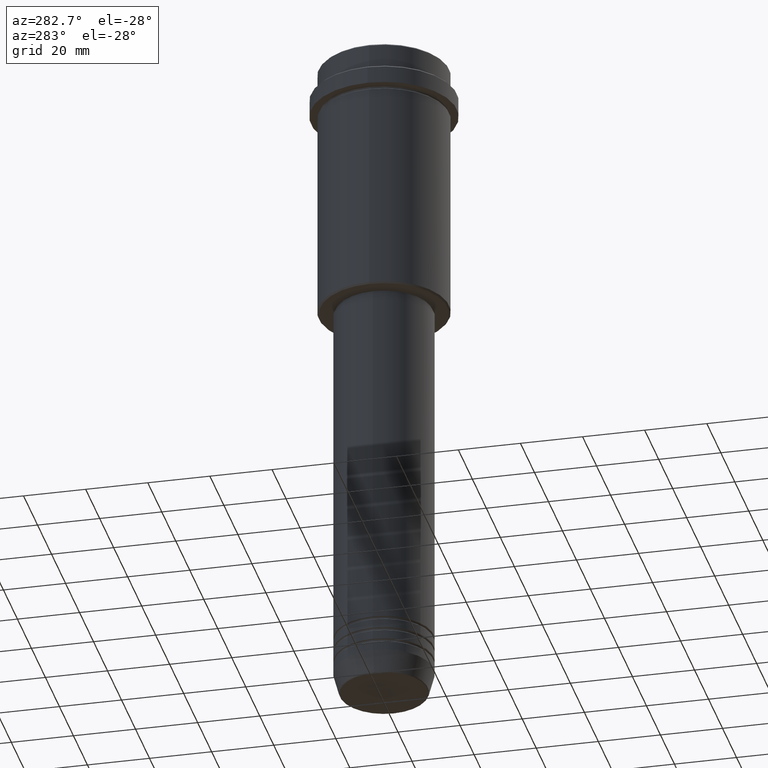
[diagram: clean part render]
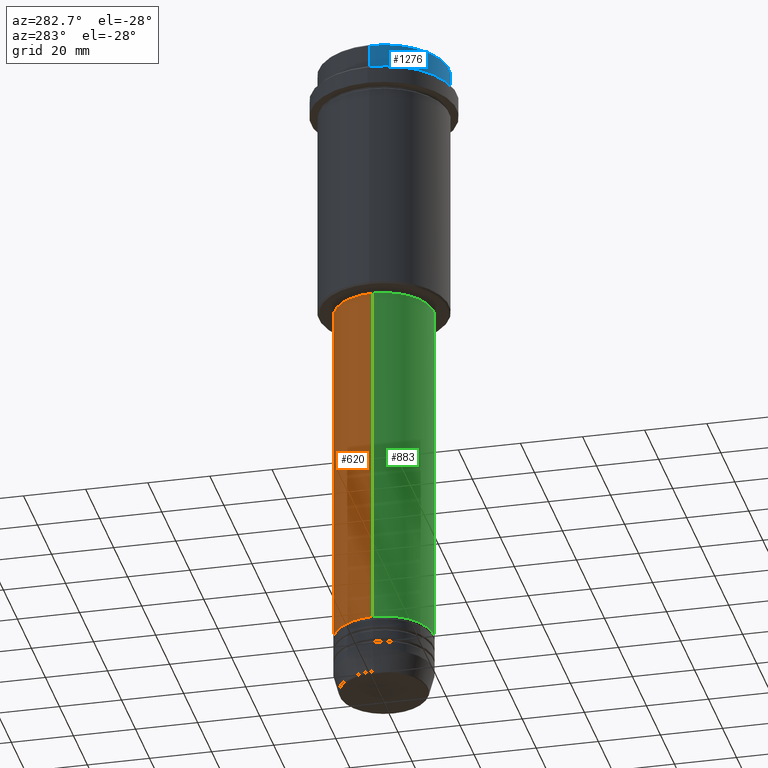
[diagram: same view with three faces highlighted in distinct colors, each labeled with its STEP entity id]
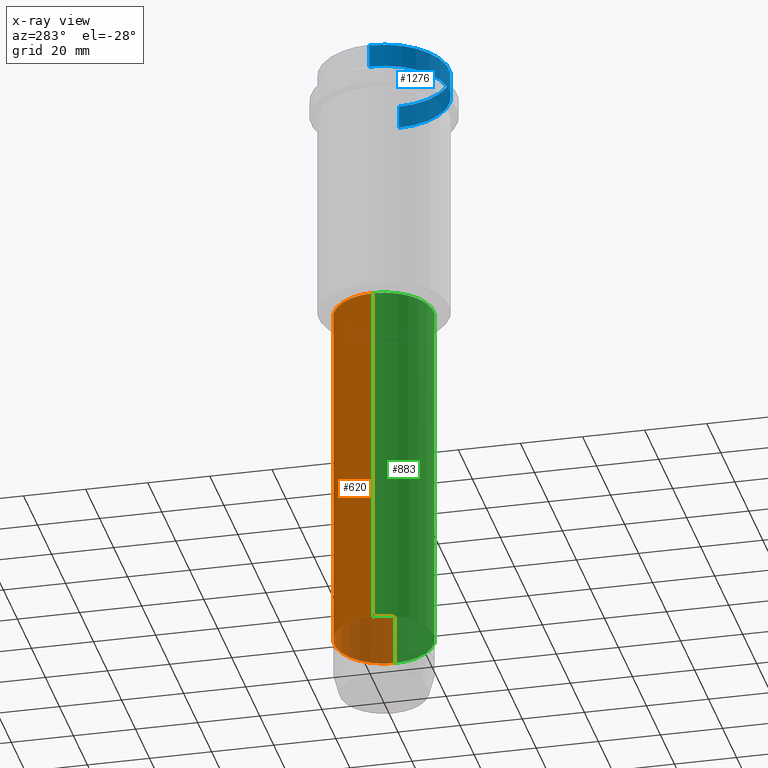
[diagram: x-ray of the same camera — body ghosted, the three highlighted faces saturated]
A machine part, auxiliary view with three faces highlighted in distinct colors.
The next image is the same camera in x-ray (body ghosted, the three faces saturated) — at least one of them is partly hidden behind the body in this view.
Their STEP definitions:

[orange] entity #620 — the highlighted cylindrical surface (partial cylindrical patch) has radius 16 mm, axis along (-0, -0, 1).
#7 = EDGE_CURVE ( 'NONE', #1175, #1412, #986, .T. ) ;
#15 = LINE ( 'NONE', #898, #1213 ) ;
#129 = CARTESIAN_POINT ( 'NONE',  ( 16.00000000000000000, 0.000000000000000000, -200.9999999999999147 ) ) ;
#144 = EDGE_CURVE ( 'NONE', #1412, #632, #979, .T. ) ;
#207 = VERTEX_POINT ( 'NONE', #411 ) ;
#288 = AXIS2_PLACEMENT_3D ( 'NONE', #599, #924, #1346 ) ;
#311 = AXIS2_PLACEMENT_3D ( 'NONE', #1319, #878, #867 ) ;
#401 = DIRECTION ( 'NONE',  ( 1.000000000000000000, 0.000000000000000000, 0.000000000000000000 ) ) ;
#410 = EDGE_CURVE ( 'NONE', #1175, #207, #15, .T. ) ;
#411 = CARTESIAN_POINT ( 'NONE',  ( 16.00000000000000355, 0.000000000000000000, -86.00000000000001421 ) ) ;
#599 = CARTESIAN_POINT ( 'NONE',  ( 0.000000000000000000, 0.000000000000000000, -200.9999999999999147 ) ) ;
#620 = ADVANCED_FACE ( 'NONE', ( #634 ), #846, .T. ) ;
#630 = CARTESIAN_POINT ( 'NONE',  ( -16.00000000000000355, 1.959434878635765526E-15, -86.00000000000001421 ) ) ;
#632 = VERTEX_POINT ( 'NONE', #630 ) ;
#634 = FACE_OUTER_BOUND ( 'NONE', #654, .T. ) ;
#645 = DIRECTION ( 'NONE',  ( -0.000000000000000000, -0.000000000000000000, 1.000000000000000000 ) ) ;
#654 = EDGE_LOOP ( 'NONE', ( #1058, #734, #1279, #1168 ) ) ;
#663 = CIRCLE ( 'NONE', #311, 16.00000000000000355 ) ;
#734 = ORIENTED_EDGE ( 'NONE', *, *, #144, .T. ) ;
#751 = EDGE_CURVE ( 'NONE', #207, #632, #663, .T. ) ;
#816 = CARTESIAN_POINT ( 'NONE',  ( -16.00000000000000000, 1.959434878635765131E-15, -200.9999999999999147 ) ) ;
#846 = CYLINDRICAL_SURFACE ( 'NONE', #1283, 16.00000000000000000 ) ;
#867 = DIRECTION ( 'NONE',  ( 1.000000000000000000, 0.000000000000000000, 0.000000000000000000 ) ) ;
#878 = DIRECTION ( 'NONE',  ( -0.000000000000000000, -0.000000000000000000, 1.000000000000000000 ) ) ;
#898 = CARTESIAN_POINT ( 'NONE',  ( 16.00000000000000000, 0.000000000000000000, 0.000000000000000000 ) ) ;
#915 = VECTOR ( 'NONE', #1298, 1000.000000000000000 ) ;
#924 = DIRECTION ( 'NONE',  ( -0.000000000000000000, -0.000000000000000000, 1.000000000000000000 ) ) ;
#979 = LINE ( 'NONE', #1194, #915 ) ;
#986 = CIRCLE ( 'NONE', #288, 16.00000000000000000 ) ;
#1058 = ORIENTED_EDGE ( 'NONE', *, *, #7, .T. ) ;
#1078 = CARTESIAN_POINT ( 'NONE',  ( 0.000000000000000000, 0.000000000000000000, 0.000000000000000000 ) ) ;
#1168 = ORIENTED_EDGE ( 'NONE', *, *, #410, .F. ) ;
#1175 = VERTEX_POINT ( 'NONE', #129 ) ;
#1194 = CARTESIAN_POINT ( 'NONE',  ( -16.00000000000000000, 1.959434878635765131E-15, 0.000000000000000000 ) ) ;
#1213 = VECTOR ( 'NONE', #1329, 1000.000000000000000 ) ;
#1279 = ORIENTED_EDGE ( 'NONE', *, *, #751, .F. ) ;
#1283 = AXIS2_PLACEMENT_3D ( 'NONE', #1078, #645, #401 ) ;
#1298 = DIRECTION ( 'NONE',  ( -0.000000000000000000, -0.000000000000000000, 1.000000000000000000 ) ) ;
#1319 = CARTESIAN_POINT ( 'NONE',  ( 0.000000000000000000, 0.000000000000000000, -86.00000000000001421 ) ) ;
#1329 = DIRECTION ( 'NONE',  ( -0.000000000000000000, -0.000000000000000000, 1.000000000000000000 ) ) ;
#1346 = DIRECTION ( 'NONE',  ( 1.000000000000000000, 0.000000000000000000, 0.000000000000000000 ) ) ;
#1412 = VERTEX_POINT ( 'NONE', #816 ) ;

[blue] entity #1276 — the highlighted cylindrical surface (partial cylindrical patch) has radius 21 mm, axis along (-0, -0, 1).
#25 = VERTEX_POINT ( 'NONE', #716 ) ;
#95 = LINE ( 'NONE', #754, #1036 ) ;
#132 = AXIS2_PLACEMENT_3D ( 'NONE', #625, #521, #185 ) ;
#150 = LINE ( 'NONE', #798, #334 ) ;
#172 = ORIENTED_EDGE ( 'NONE', *, *, #235, .F. ) ;
#185 = DIRECTION ( 'NONE',  ( 1.000000000000000000, 0.000000000000000000, 0.000000000000000000 ) ) ;
#195 = DIRECTION ( 'NONE',  ( -0.000000000000000000, -0.000000000000000000, 1.000000000000000000 ) ) ;
#200 = EDGE_CURVE ( 'NONE', #907, #25, #1345, .T. ) ;
#235 = EDGE_CURVE ( 'NONE', #907, #626, #95, .T. ) ;
#242 = DIRECTION ( 'NONE',  ( 0.000000000000000000, 0.000000000000000000, -1.000000000000000000 ) ) ;
#249 = FACE_OUTER_BOUND ( 'NONE', #880, .T. ) ;
#330 = DIRECTION ( 'NONE',  ( -0.000000000000000000, -0.000000000000000000, 1.000000000000000000 ) ) ;
#334 = VECTOR ( 'NONE', #1227, 1000.000000000000000 ) ;
#475 = DIRECTION ( 'NONE',  ( 1.000000000000000000, 0.000000000000000000, 0.000000000000000000 ) ) ;
#521 = DIRECTION ( 'NONE',  ( -0.000000000000000000, -0.000000000000000000, 1.000000000000000000 ) ) ;
#565 = CIRCLE ( 'NONE', #969, 20.99999999999999645 ) ;
#584 = ORIENTED_EDGE ( 'NONE', *, *, #200, .T. ) ;
#625 = CARTESIAN_POINT ( 'NONE',  ( 0.000000000000000000, 0.000000000000000000, -7.999999999999998224 ) ) ;
#626 = VERTEX_POINT ( 'NONE', #1277 ) ;
#669 = CYLINDRICAL_SURFACE ( 'NONE', #832, 20.99999999999999645 ) ;
#716 = CARTESIAN_POINT ( 'NONE',  ( 20.99999999999999645, 0.000000000000000000, -7.999999999999998224 ) ) ;
#754 = CARTESIAN_POINT ( 'NONE',  ( -20.99999999999999645, 2.571758278209441267E-15, 0.000000000000000000 ) ) ;
#781 = DIRECTION ( 'NONE',  ( 1.000000000000000000, 0.000000000000000000, 0.000000000000000000 ) ) ;
#798 = CARTESIAN_POINT ( 'NONE',  ( 20.99999999999999645, 0.000000000000000000, 0.000000000000000000 ) ) ;
#832 = AXIS2_PLACEMENT_3D ( 'NONE', #1318, #330, #781 ) ;
#880 = EDGE_LOOP ( 'NONE', ( #172, #584, #941, #1186 ) ) ;
#907 = VERTEX_POINT ( 'NONE', #1250 ) ;
#941 = ORIENTED_EDGE ( 'NONE', *, *, #974, .T. ) ;
#952 = EDGE_CURVE ( 'NONE', #1006, #626, #565, .T. ) ;
#969 = AXIS2_PLACEMENT_3D ( 'NONE', #1335, #242, #475 ) ;
#974 = EDGE_CURVE ( 'NONE', #25, #1006, #150, .T. ) ;
#1006 = VERTEX_POINT ( 'NONE', #1417 ) ;
#1036 = VECTOR ( 'NONE', #195, 1000.000000000000000 ) ;
#1186 = ORIENTED_EDGE ( 'NONE', *, *, #952, .T. ) ;
#1227 = DIRECTION ( 'NONE',  ( -0.000000000000000000, -0.000000000000000000, 1.000000000000000000 ) ) ;
#1250 = CARTESIAN_POINT ( 'NONE',  ( -20.99999999999999645, 2.571758278209441267E-15, -7.999999999999998224 ) ) ;
#1276 = ADVANCED_FACE ( 'NONE', ( #249 ), #669, .T. ) ;
#1277 = CARTESIAN_POINT ( 'NONE',  ( -20.99999999999999645, 2.571758278209441267E-15, -0.5000000000000073275 ) ) ;
#1318 = CARTESIAN_POINT ( 'NONE',  ( 0.000000000000000000, 0.000000000000000000, 0.000000000000000000 ) ) ;
#1335 = CARTESIAN_POINT ( 'NONE',  ( 0.000000000000000000, 0.000000000000000000, -0.5000000000000073275 ) ) ;
#1345 = CIRCLE ( 'NONE', #132, 20.99999999999999645 ) ;
#1417 = CARTESIAN_POINT ( 'NONE',  ( 20.99999999999999645, 0.000000000000000000, -0.5000000000000073275 ) ) ;

[green] entity #883 — the highlighted cylindrical surface (partial cylindrical patch) has radius 16 mm, axis along (-0, -0, 1).
#4 = EDGE_LOOP ( 'NONE', ( #1231, #71, #140, #496 ) ) ;
#15 = LINE ( 'NONE', #898, #1213 ) ;
#26 = DIRECTION ( 'NONE',  ( -0.000000000000000000, -0.000000000000000000, 1.000000000000000000 ) ) ;
#51 = FACE_OUTER_BOUND ( 'NONE', #4, .T. ) ;
#71 = ORIENTED_EDGE ( 'NONE', *, *, #1228, .T. ) ;
#84 = EDGE_CURVE ( 'NONE', #632, #207, #402, .T. ) ;
#129 = CARTESIAN_POINT ( 'NONE',  ( 16.00000000000000000, 0.000000000000000000, -200.9999999999999147 ) ) ;
#140 = ORIENTED_EDGE ( 'NONE', *, *, #410, .T. ) ;
#144 = EDGE_CURVE ( 'NONE', #1412, #632, #979, .T. ) ;
#207 = VERTEX_POINT ( 'NONE', #411 ) ;
#263 = DIRECTION ( 'NONE',  ( 1.000000000000000000, 0.000000000000000000, 0.000000000000000000 ) ) ;
#283 = CARTESIAN_POINT ( 'NONE',  ( 0.000000000000000000, 0.000000000000000000, -86.00000000000001421 ) ) ;
#363 = CARTESIAN_POINT ( 'NONE',  ( 0.000000000000000000, 0.000000000000000000, 0.000000000000000000 ) ) ;
#402 = CIRCLE ( 'NONE', #1391, 16.00000000000000355 ) ;
#410 = EDGE_CURVE ( 'NONE', #1175, #207, #15, .T. ) ;
#411 = CARTESIAN_POINT ( 'NONE',  ( 16.00000000000000355, 0.000000000000000000, -86.00000000000001421 ) ) ;
#431 = AXIS2_PLACEMENT_3D ( 'NONE', #363, #1354, #263 ) ;
#496 = ORIENTED_EDGE ( 'NONE', *, *, #84, .F. ) ;
#630 = CARTESIAN_POINT ( 'NONE',  ( -16.00000000000000355, 1.959434878635765526E-15, -86.00000000000001421 ) ) ;
#632 = VERTEX_POINT ( 'NONE', #630 ) ;
#732 = DIRECTION ( 'NONE',  ( 1.000000000000000000, 0.000000000000000000, 0.000000000000000000 ) ) ;
#816 = CARTESIAN_POINT ( 'NONE',  ( -16.00000000000000000, 1.959434878635765131E-15, -200.9999999999999147 ) ) ;
#883 = ADVANCED_FACE ( 'NONE', ( #51 ), #1236, .T. ) ;
#898 = CARTESIAN_POINT ( 'NONE',  ( 16.00000000000000000, 0.000000000000000000, 0.000000000000000000 ) ) ;
#901 = CARTESIAN_POINT ( 'NONE',  ( 0.000000000000000000, 0.000000000000000000, -200.9999999999999147 ) ) ;
#915 = VECTOR ( 'NONE', #1298, 1000.000000000000000 ) ;
#921 = CIRCLE ( 'NONE', #1414, 16.00000000000000000 ) ;
#979 = LINE ( 'NONE', #1194, #915 ) ;
#1172 = DIRECTION ( 'NONE',  ( -0.000000000000000000, -0.000000000000000000, 1.000000000000000000 ) ) ;
#1175 = VERTEX_POINT ( 'NONE', #129 ) ;
#1194 = CARTESIAN_POINT ( 'NONE',  ( -16.00000000000000000, 1.959434878635765131E-15, 0.000000000000000000 ) ) ;
#1213 = VECTOR ( 'NONE', #1329, 1000.000000000000000 ) ;
#1228 = EDGE_CURVE ( 'NONE', #1412, #1175, #921, .T. ) ;
#1231 = ORIENTED_EDGE ( 'NONE', *, *, #144, .F. ) ;
#1236 = CYLINDRICAL_SURFACE ( 'NONE', #431, 16.00000000000000000 ) ;
#1298 = DIRECTION ( 'NONE',  ( -0.000000000000000000, -0.000000000000000000, 1.000000000000000000 ) ) ;
#1329 = DIRECTION ( 'NONE',  ( -0.000000000000000000, -0.000000000000000000, 1.000000000000000000 ) ) ;
#1338 = DIRECTION ( 'NONE',  ( 1.000000000000000000, 0.000000000000000000, 0.000000000000000000 ) ) ;
#1354 = DIRECTION ( 'NONE',  ( -0.000000000000000000, -0.000000000000000000, 1.000000000000000000 ) ) ;
#1391 = AXIS2_PLACEMENT_3D ( 'NONE', #283, #1172, #732 ) ;
#1412 = VERTEX_POINT ( 'NONE', #816 ) ;
#1414 = AXIS2_PLACEMENT_3D ( 'NONE', #901, #26, #1338 ) ;